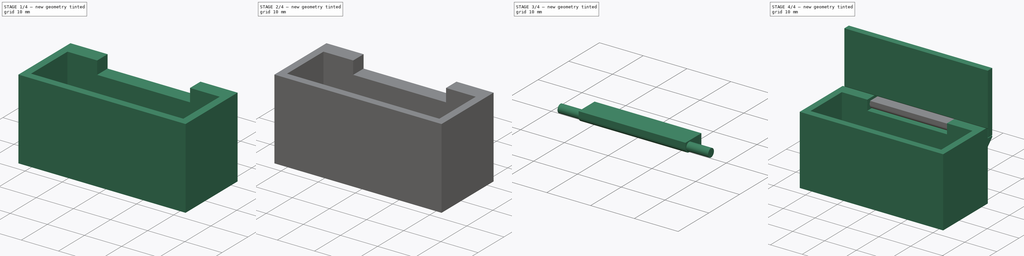
[diagram: build sequence overview — one tinted view per stage of 4, left to right]
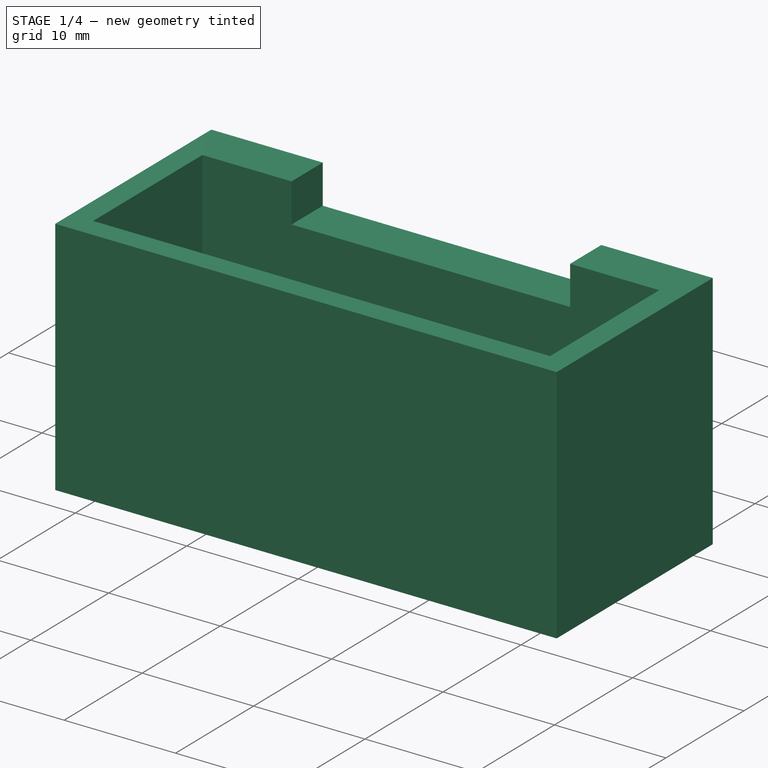
[diagram: stage 1 of 4 — iso view after this stage's code; geometry added in this stage tinted green]
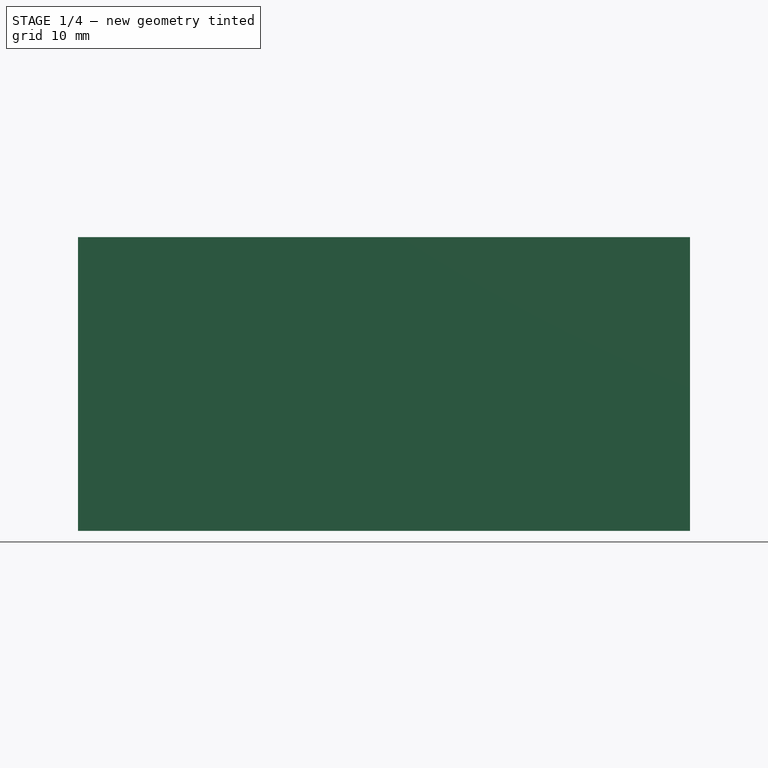
[diagram: stage 1 of 4 — front view after this stage's code; geometry added in this stage tinted green]
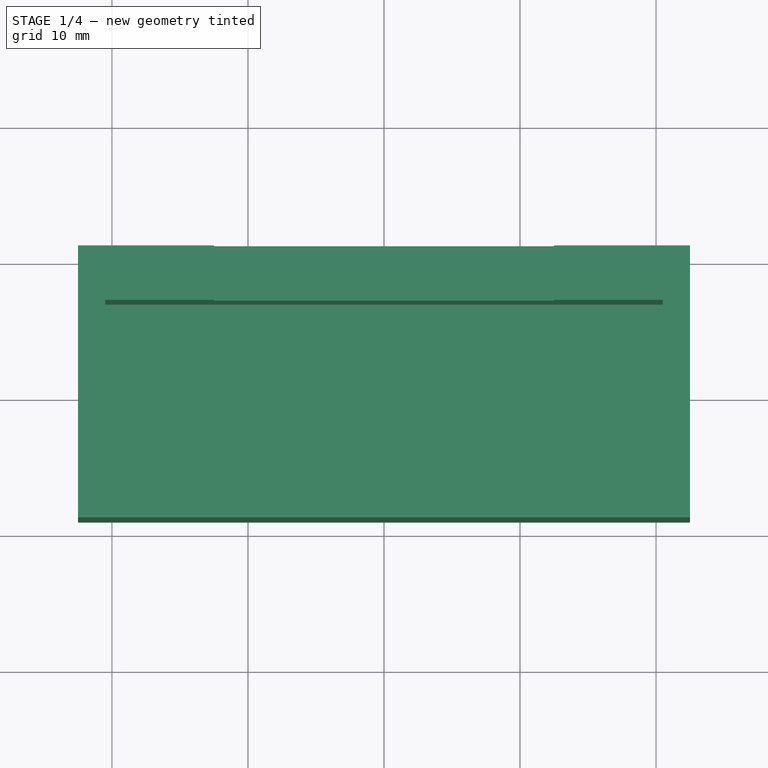
[diagram: stage 1 of 4 — top view after this stage's code; geometry added in this stage tinted green]
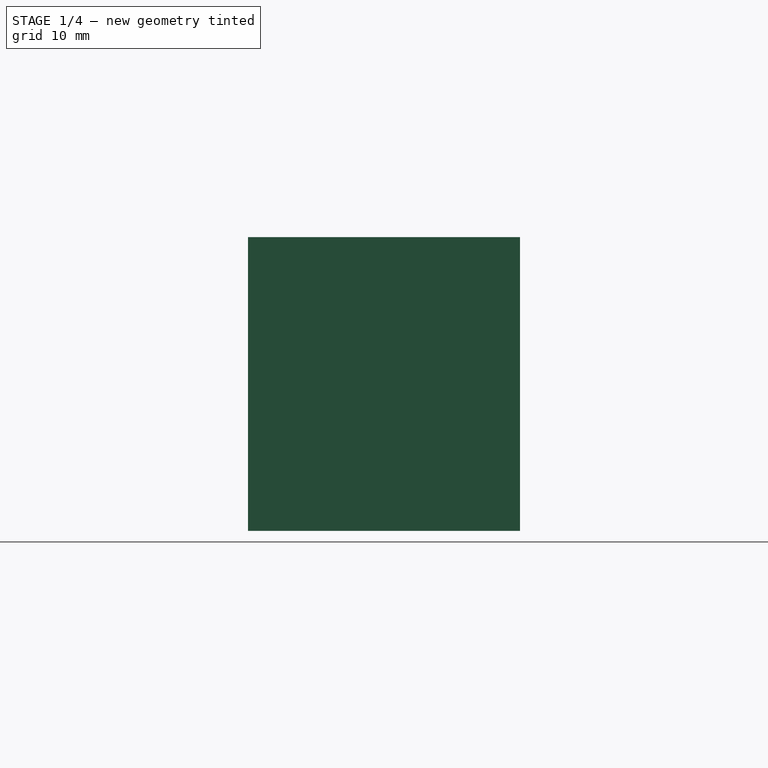
[diagram: stage 1 of 4 — right view after this stage's code; geometry added in this stage tinted green]
FCSTD DOCUMENT  (FreeCAD 1.1R41446 (Git))
Label: КАбка
License: All rights reserved
LicenseURL: https://en.wikipedia.org/wiki/All_rights_reserved
objects: Sketcher::SketchObject×8, PartDesign::Pad×6, PartDesign::SubShapeBinder×5, App::Point×3, PartDesign::Body×3, PartDesign::Pocket×2, PartDesign::Mirrored×1, Part::DatumPlane×1, PartDesign::Revolution×1, PartDesign::Fillet×1, Part::MultiFuse×1
note: 57 computed .brp shape members not serialized (recipe doc carries the construction recipe); baked Part::Feature solids carry a one-line shape summary decoded from their .brp

FEATURE [App::Point] Origin001  label="Начало координат"
  Role = Origin
FEATURE [Sketcher::SketchObject] Sketch
  ArcFitTolerance = 1e-06
  AttachmentSupport = -> [Origin]
  ExternalTypes = [0]
  FullyConstrained = true
  MakeInternals = false
  MapMode = 5
  sketch-geometry (13):
    g0: LineSegment StartX=-20.5 StartY=-7 StartZ=0 EndX=20.5 EndY=-7 EndZ=0
    g1: LineSegment StartX=20.5 StartY=-7 StartZ=0 EndX=20.5 EndY=7 EndZ=0
    g2: LineSegment StartX=20.5 StartY=7 StartZ=0 EndX=-20.5 EndY=7 EndZ=0
    g3: LineSegment StartX=-20.5 StartY=7 StartZ=0 EndX=-20.5 EndY=-7 EndZ=0
    g4: GeomPoint [constr] X=0 Y=0 Z=0
    g5: LineSegment StartX=-22.5 StartY=11 StartZ=0 EndX=-22.5 EndY=-9 EndZ=0
    g6: LineSegment StartX=-22.5 StartY=-9 StartZ=0 EndX=22.5 EndY=-9 EndZ=0
    g7: LineSegment StartX=22.5 StartY=-9 StartZ=0 EndX=22.5 EndY=11 EndZ=0
    g8: LineSegment StartX=22.5 StartY=11 StartZ=0 EndX=-22.5 EndY=11 EndZ=0
    g9: LineSegment [constr] StartX=-22.5 StartY=-7 StartZ=0 EndX=-20.5 EndY=-7 EndZ=0
    g10: LineSegment [constr] StartX=-20.5 StartY=-7 StartZ=0 EndX=-20.5 EndY=-9 EndZ=0
    g11: LineSegment [constr] StartX=20.5 StartY=-9 StartZ=0 EndX=20.5 EndY=-7 EndZ=0
    g12: LineSegment [constr] StartX=20.5 StartY=-7 StartZ=0 EndX=22.5 EndY=-7 EndZ=0
  constraints (36):
    c: Coincident(g0,g1)
    c: Coincident(g1,g2)
    c: Coincident(g2,g3)
    c: Coincident(g3,g0)
    c: Horizontal(g0)
    c: Horizontal(g2)
    c: Vertical(g1)
    c: Vertical(g3)
    c: Symmetric(g2,g0,g4)
    c: Coincident(g4,g-1)
    c: Coincident(g5,g6)
    c: Coincident(g6,g7)
    c: Coincident(g7,g8)
    c: Coincident(g8,g5)
    c: Vertical(g5)
    c: Vertical(g7)
    c: Horizontal(g6)
    c: Horizontal(g8)
    c: PointOnObject(g9,g5)
    c: Coincident(g9,g0)
    c: Coincident(g9,g10)
    c: PointOnObject(g10,g6)
    c: Vertical(g10)
    c: PointOnObject(g11,g6)
    c: Coincident(g11,g0)
    c: Vertical(g11)
    c: Coincident(g11,g12)
    c: PointOnObject(g12,g7)
    c: Horizontal(g12)
    c: Equal(g12,g11)
    c: Equal(g12,g9)
    c: Horizontal(g9)
    c: DistanceY(g2,g5) = 4
    c: DistanceX(g9,g9) = 2
    c: DistanceX(g6,g6) = 45
    c: DistanceY(g5,g5) = 20  'l1'
FEATURE [PartDesign::Pad] Pad
  Direction = (0,0,1)
  Length = 20
  Length2 = 10
  Profile = -> Sketch
  ReferenceAxis = -> Sketch [N_Axis]
  Refine = true
  Suppressed = false
  Type = 0
FEATURE [PartDesign::SubShapeBinder] Binder
  BindCopyOnChange = 0
  BindMode = 0
  ClaimChildren = false
  Context = -> Body [Binder.]
  Fuse = false
  MakeFace = true
  OffsetFill = false
  OffsetIntersection = false
  OffsetJoinType = 0
  OffsetOpenResult = false
  PartialLoad = false
  Refine = true
  Relative = true
  Support = -> [Pad[Edge3,Edge11,Edge6,Edge9]]
  _Version = 2
FEATURE [PartDesign::Pad] Pad001
  BaseFeature = -> Pad
  Direction = (0,0,1)
  Length = 1.6
  Length2 = 10
  Profile = -> Binder
  Refine = true
  Reversed = true
  Suppressed = false
  Type = 0
FEATURE [Sketcher::SketchObject] Sketch001
  ArcFitTolerance = 1e-06
  AttachmentSupport = -> [Pad001]
  ExternalGeometry = -> [Pad001]
  ExternalTypes = [0]
  FullyConstrained = true
  MakeInternals = false
  MapMode = 5
  Placement = pos=(0,11,0) rot=(0,0.707107,0.707107;3.14159rad)
  sketch-geometry (6):
    g0: LineSegment [constr] StartX=-22.5 StartY=20 StartZ=0 EndX=-12.5 EndY=20 EndZ=0
    g1: LineSegment [constr] StartX=22.5 StartY=20 StartZ=0 EndX=12.5 EndY=20 EndZ=0
    g2: LineSegment StartX=-12.5 StartY=20 StartZ=0 EndX=12.5 EndY=20 EndZ=0
    g3: LineSegment StartX=12.5 StartY=20 StartZ=0 EndX=12.5 EndY=16.5 EndZ=0
    g4: LineSegment StartX=12.5 StartY=16.5 StartZ=0 EndX=-12.5 EndY=16.5 EndZ=0
    g5: LineSegment StartX=-12.5 StartY=16.5 StartZ=0 EndX=-12.5 EndY=20 EndZ=0
  constraints (16):
    c: Coincident(g-3,g0)
    c: Coincident(g-3,g1)
    c: Equal(g0,g1)
    c: DistanceX(g1,g1) = 10
    c: PointOnObject(g1,g-3)
    c: PointOnObject(g0,g-3)
    c: Coincident(g0,g2)
    c: Coincident(g2,g1)
    c: Coincident(g2,g3)
    c: Vertical(g3)
    c: Coincident(g3,g4)
    c: Horizontal(g4)
    c: Coincident(g4,g5)
    c: Coincident(g5,g2)
    c: Vertical(g5)
    c: DistanceY(g5,g5) = 3.5
FEATURE [PartDesign::Pocket] Pocket
  BaseFeature = -> Pad001
  Direction = (0,-1,2e-16)
  Length = 0
  Length2 = 5
  Profile = -> Sketch001
  ReferenceAxis = -> Sketch001 [N_Axis]
  Refine = true
  Suppressed = false
  Type = 3
  UpToFace = -> Pad001 [Face6]
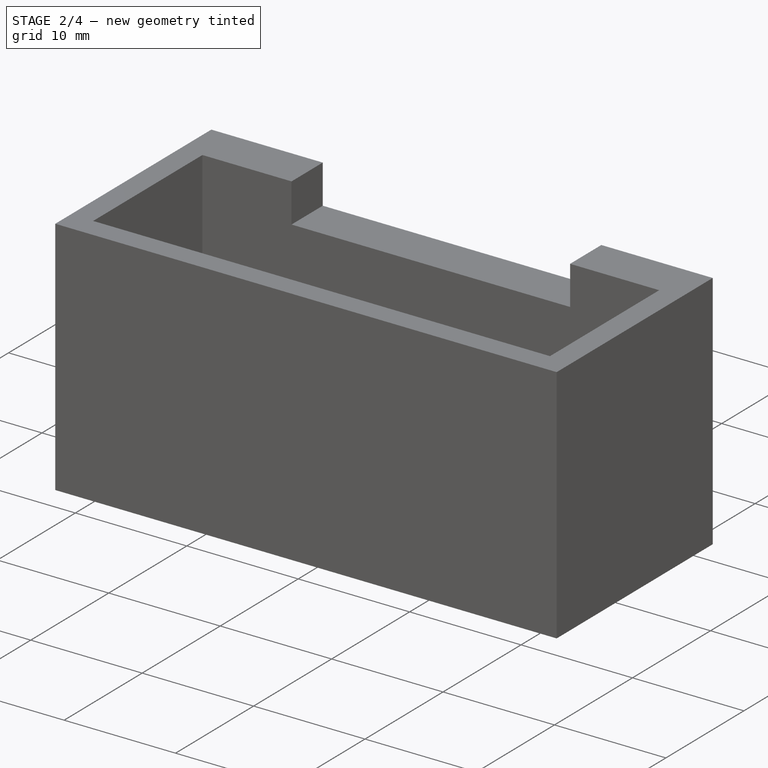
[diagram: stage 2 of 4 — iso view after this stage's code; geometry added in this stage tinted green]
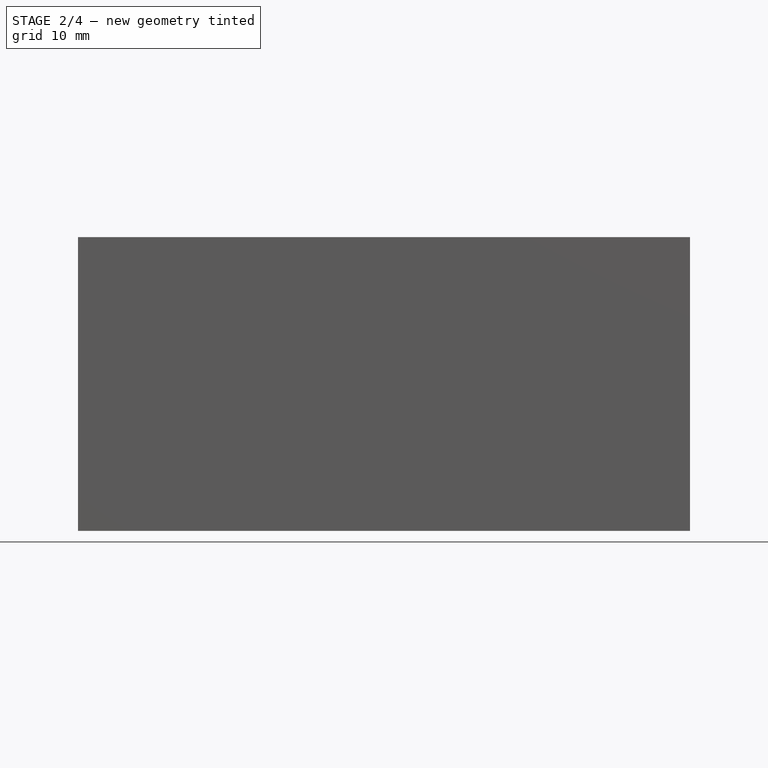
[diagram: stage 2 of 4 — front view after this stage's code; geometry added in this stage tinted green]
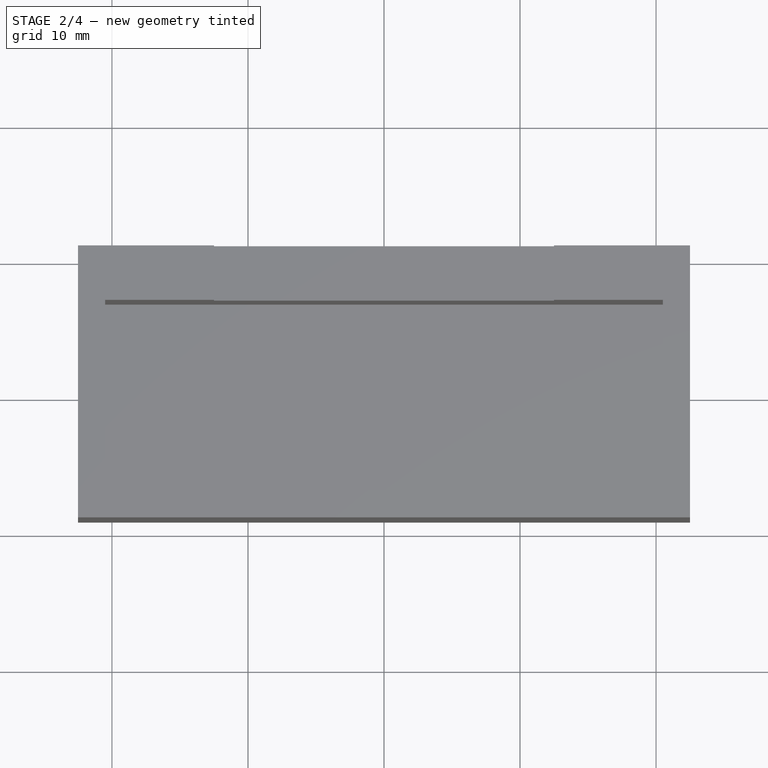
[diagram: stage 2 of 4 — top view after this stage's code; geometry added in this stage tinted green]
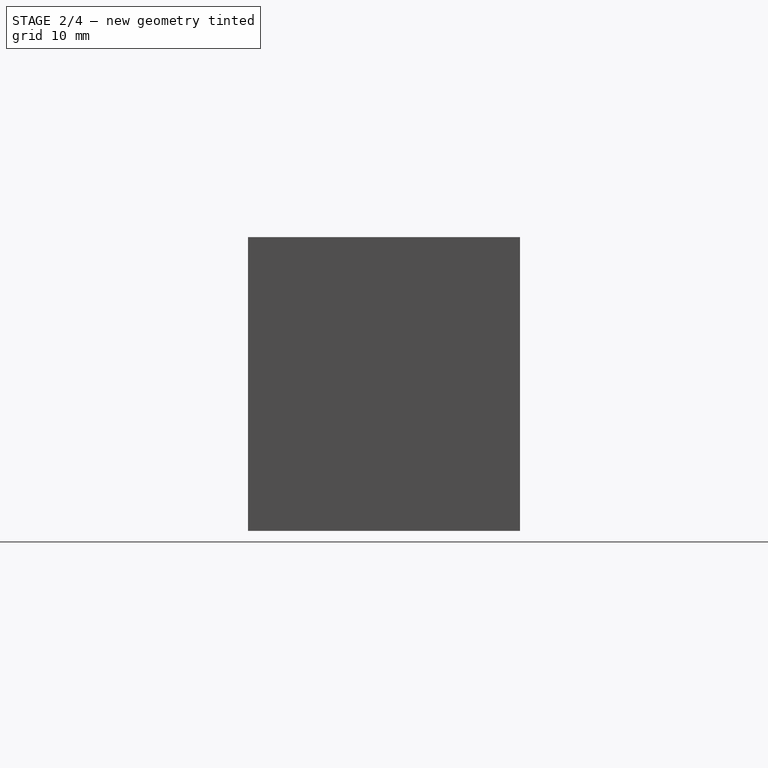
[diagram: stage 2 of 4 — right view after this stage's code; geometry added in this stage tinted green]
FEATURE [Sketcher::SketchObject] Sketch002
  ArcFitTolerance = 1e-06
  ExternalTypes = [0,0]
  FullyConstrained = true
  MakeInternals = false
  MapMode = 5
  Placement = pos=(12.5,0,0) rot=(0.57735,-0.57735,-0.57735;2.0944rad)
  sketch-geometry (2):
    g0: GeomPoint X=-9 Y=18.25 Z=0
    g1: Circle CenterX=-9 CenterY=18.25 CenterZ=0 NormalX=0 NormalY=0 NormalZ=1 AngleXU=0 Radius=1.25
  constraints (3):
    c: Symmetric(g-3,g-4,g0)
    c: Coincident(g1,g0)
    c: Diameter(g1) = 2.5
FEATURE [PartDesign::Pocket] Pocket001
  BaseFeature = -> Pocket
  Direction = (1,0,0)
  Length = 5
  Length2 = 5
  Profile = -> Sketch002
  ReferenceAxis = -> Sketch002 [N_Axis]
  Refine = true
  Suppressed = false
  Type = 0
FEATURE [PartDesign::Mirrored] Mirrored
  BaseFeature = -> Pocket001
  MirrorPlane = -> YZ_Plane
  Originals = -> [Pocket001]
  Refine = true
  Suppressed = false
  TransformMode = 0
FEATURE [PartDesign::Body] Body002  label="Тело002"
  AllowCompound = false
  Group = -> [Binder004,Sketch008,Pad005]
  Origin = -> Origin004
  Tip = -> Pad005
FEATURE [PartDesign::Fillet] Fillet
  Base = -> Pocket [Edge10,Edge6]
  BaseFeature = -> Pocket
  Radius = 1
  Refine = true
  SupportTransform = false
  Suppressed = false
  UseAllEdges = false
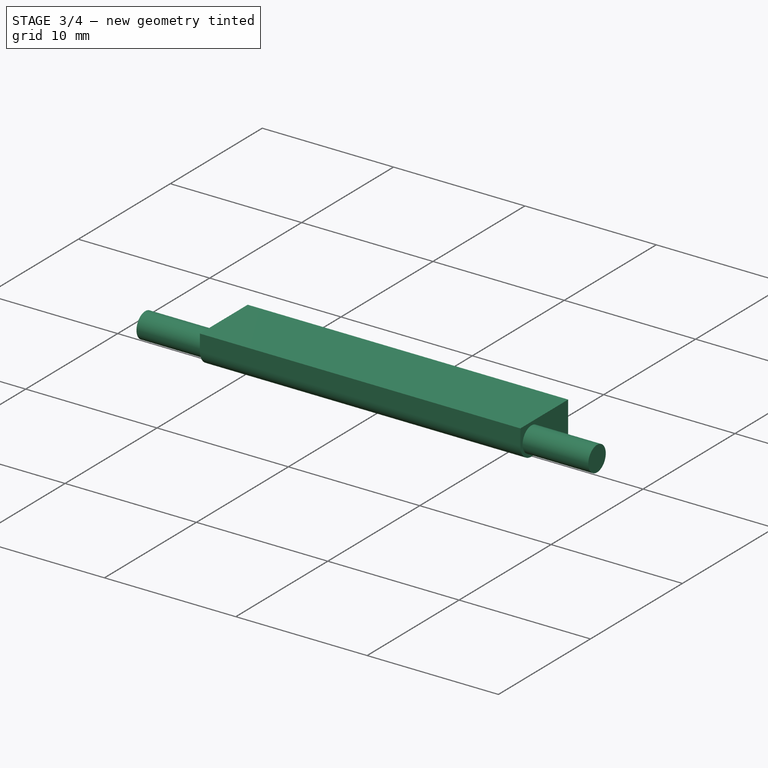
[diagram: stage 3 of 4 — iso view after this stage's code; geometry added in this stage tinted green]
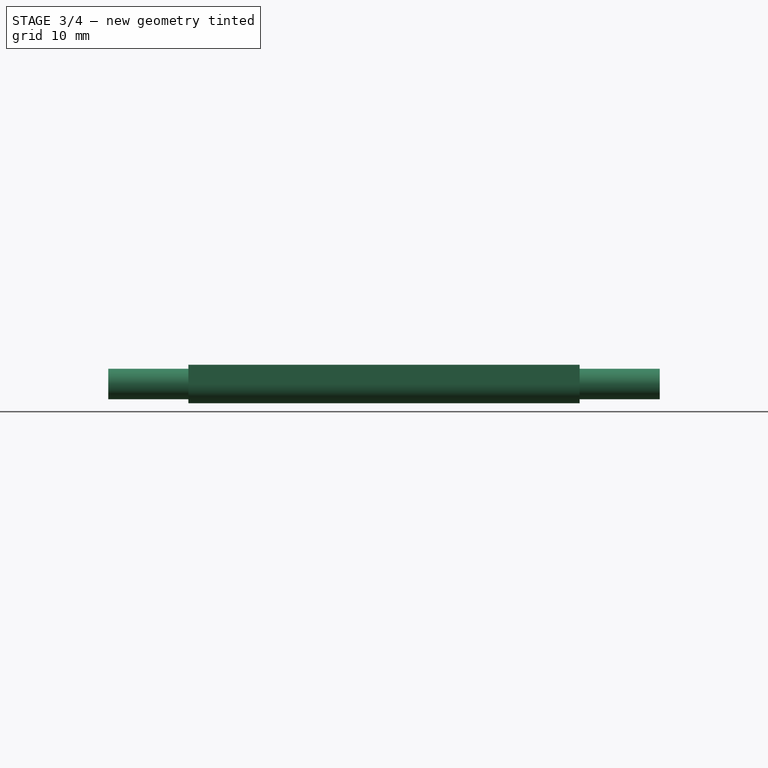
[diagram: stage 3 of 4 — front view after this stage's code; geometry added in this stage tinted green]
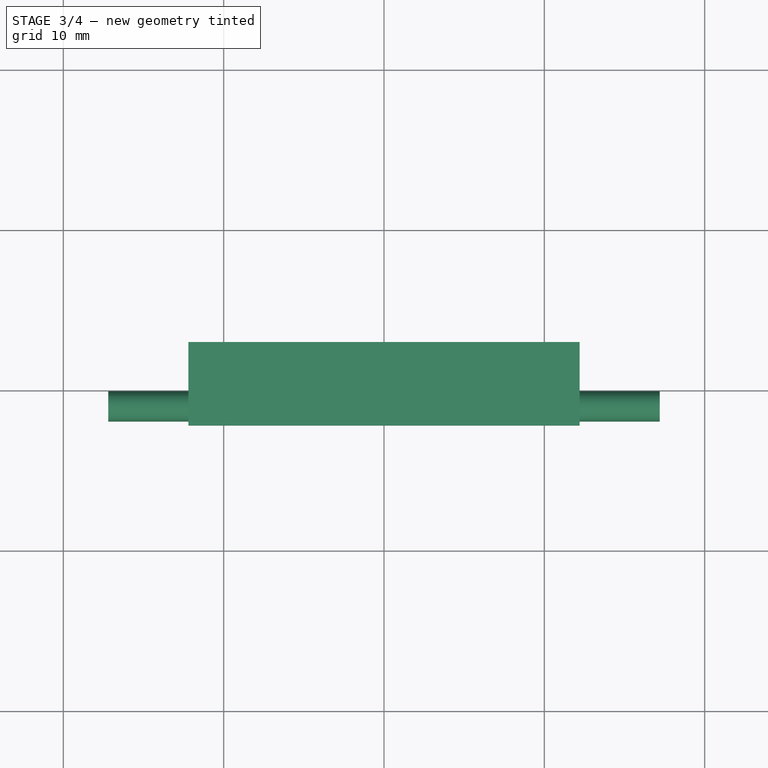
[diagram: stage 3 of 4 — top view after this stage's code; geometry added in this stage tinted green]
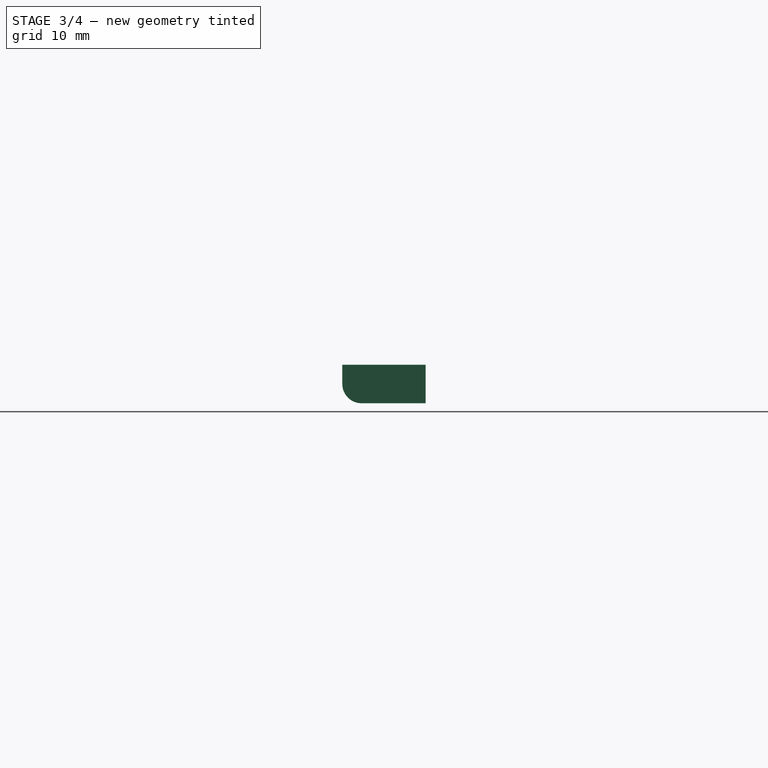
[diagram: stage 3 of 4 — right view after this stage's code; geometry added in this stage tinted green]
FEATURE [App::Point] Origin003  label="Начало координат002"
  Role = Origin
FEATURE [PartDesign::SubShapeBinder] Binder001
  BindCopyOnChange = 0
  BindMode = 0
  ClaimChildren = false
  Context = -> Body001 [Binder001.]
  Fuse = false
  MakeFace = true
  OffsetFill = false
  OffsetIntersection = false
  OffsetJoinType = 0
  OffsetOpenResult = false
  PartialLoad = false
  Refine = true
  Relative = true
  Support = -> [Body[Mirrored.]]
  _Version = 2
FEATURE [Part::DatumPlane] DatumPlane
  AttachmentOffset = pos=(0,0,1.25) rot=(0,0,1;0rad)
  AttachmentSupport = -> [Binder001]
  MapMode = 6
  Placement = pos=(-12.5,9,18.25) rot=(0.57735,-0.57735,-0.57735;4.18879rad)
FEATURE [Sketcher::SketchObject] Sketch003
  ArcFitTolerance = 1e-06
  AttachmentSupport = -> [DatumPlane]
  ExternalGeometry = -> [Binder001]
  ExternalTypes = [0,0,0,0,0]
  FullyConstrained = false
  MakeInternals = false
  MapMode = 5
  Placement = pos=(-12.5,9,18.25) rot=(0.57735,-0.57735,-0.57735;4.18879rad)
  sketch-geometry (19):
    g0: LineSegment [constr] StartX=-0.95 StartY=4.7 StartZ=0 EndX=-0.95 EndY=-0.3 EndZ=0
    g1: LineSegment [constr] StartX=-0.95 StartY=-0.3 StartZ=0 EndX=-1.2 EndY=-0.3 EndZ=0
    g2: LineSegment [constr] StartX=-1.2 StartY=-0.3 StartZ=0 EndX=-1.2 EndY=-24.7 EndZ=0
    g3: LineSegment [constr] StartX=-1.2 StartY=-24.7 StartZ=0 EndX=-0.95 EndY=-24.7 EndZ=0
    g4: LineSegment [constr] StartX=-0.95 StartY=-24.7 StartZ=0 EndX=-0.95 EndY=-29.7 EndZ=0
    g5: LineSegment StartX=0.95 StartY=-29.7 StartZ=0 EndX=0.95 EndY=-24.7 EndZ=0
    g6: LineSegment StartX=0.95 StartY=-24.7 StartZ=0 EndX=1.2 EndY=-24.7 EndZ=0
    g7: LineSegment StartX=1.2 StartY=-24.7 StartZ=0 EndX=1.2 EndY=-0.3 EndZ=0
    g8: LineSegment StartX=1.2 StartY=-0.3 StartZ=0 EndX=0.95 EndY=-0.3 EndZ=0
    g9: LineSegment StartX=0.95 StartY=-0.3 StartZ=0 EndX=0.95 EndY=4.7 EndZ=0
    g10: LineSegment [constr] StartX=1.2 StartY=-0.3 StartZ=0 EndX=1.2 EndY=1.8e-15 EndZ=0
    g11: LineSegment [constr] StartX=1.2 StartY=-25 StartZ=0 EndX=1.2 EndY=-24.7 EndZ=0
    g12: GeomPoint [constr] X=0 Y=4.7 Z=0
    g13: LineSegment [constr] StartX=-0.95 StartY=4.7 StartZ=0 EndX=0 EndY=4.7 EndZ=0
    g14: LineSegment StartX=0 StartY=4.7 StartZ=0 EndX=0.95 EndY=4.7 EndZ=0
    g15: LineSegment [constr] StartX=-0.95 StartY=-29.7 StartZ=0 EndX=0 EndY=-29.7 EndZ=0
    g16: LineSegment StartX=0 StartY=-29.7 StartZ=0 EndX=0.95 EndY=-29.7 EndZ=0
    g17: LineSegment StartX=0 StartY=-29.7 StartZ=0 EndX=0 EndY=4.7 EndZ=0
    g18: LineSegment [constr] StartX=-8.8544 StartY=-12.5 StartZ=0 EndX=13.6841 EndY=-12.5 EndZ=0
  constraints (50):
    c: Vertical(g0)
    c: Coincident(g0,g1)
    c: Coincident(g1,g2)
    c: Vertical(g2)
    c: Coincident(g2,g3)
    c: Coincident(g3,g4)
    c: Vertical(g4)
    c: Coincident(g4,g15)
    c: Coincident(g16,g5)
    c: Coincident(g5,g6)
    c: Horizontal(g6)
    c: Coincident(g6,g7)
    c: Vertical(g7)
    c: Coincident(g7,g8)
    c: Coincident(g8,g9)
    c: Vertical(g9)
    c: Horizontal(g1)
    c: Horizontal(g8)
    c: Horizontal(g3)
    c: Vertical(g5)
    c: Horizontal(g5,g3)
    c: DistanceY(g7,g-5) = 0.3
    c: Coincident(g10,g7)
    c: PointOnObject(g10,g-5)
    c: Vertical(g10)
    c: PointOnObject(g11,g-6)
    c: Coincident(g11,g6)
    c: Vertical(g11)
    c: Equal(g11,g10)
    c: DistanceX(g7,g-3) = 0.55
    c: DistanceX(g8,g-5) = 0.3
    c: Coincident(g0,g13)
    c: Coincident(g13,g12)
    c: Horizontal(g13)
    c: Coincident(g13,g14)
    c: Horizontal(g14)
    c: Coincident(g14,g9)
    c: PointOnObject(g12,g-2)
    c: Equal(g14,g13)
    c: Coincident(g15,g16)
    c: Horizontal(g15)
    c: Horizontal(g16)
    c: Equal(g15,g16)
    c: Coincident(g17,g15)
    c: Coincident(g17,g12)
    c: DistanceY(g9,g-4) = 0.3
    c: Symmetric(g15,g12,g18)
    c: Symmetric(g2,g1,g18)
    c: Symmetric(g7,g1,g17)
    c: Equal(g6,g8)
FEATURE [PartDesign::Revolution] Revolution
  Angle = 360
  Angle2 = 60
  Axis = (-1,0,0)
  Base = (17.2,9,18.25)
  Placement = pos=(-12.5,9,18.25) rot=(0.57735,-0.57735,-0.57735;4.18879rad)
  Profile = -> Sketch003
  ReferenceAxis = -> Sketch003 [Edge7]
  Refine = true
  Reversed = true
  Suppressed = false
  Type = 0
FEATURE [Sketcher::SketchObject] Sketch004
  ArcFitTolerance = 1e-06
  AttachmentSupport = -> [Revolution]
  ExternalGeometry = -> [Revolution]
  ExternalTypes = [0]
  FullyConstrained = true
  MakeInternals = false
  MapMode = 5
  Placement = pos=(12.2,9,18.25) rot=(0,1,0;1.5708rad)
  sketch-geometry (6):
    g0: ArcOfCircle CenterX=0 CenterY=0 CenterZ=0 NormalX=0 NormalY=0 NormalZ=1 AngleXU=0 Radius=1.2 StartAngle=3.14159 EndAngle=4.71239
    g1: ArcOfCircle CenterX=0 CenterY=0 CenterZ=0 NormalX=0 NormalY=0 NormalZ=1 AngleXU=0 Radius=1.2 StartAngle=0 EndAngle=1.5708
    g2: LineSegment StartX=1e-16 StartY=1.2 StartZ=0 EndX=1.2 EndY=1.2 EndZ=0
    g3: LineSegment StartX=1.2 StartY=1.2 StartZ=0 EndX=1.2 EndY=0 EndZ=0
    g4: LineSegment StartX=-2e-16 StartY=-1.2 StartZ=0 EndX=-1.2 EndY=-1.2 EndZ=0
    g5: LineSegment StartX=-1.2 StartY=-1.2 StartZ=0 EndX=-1.2 EndY=2e-16 EndZ=0
  constraints (18):
    c: Coincident(g0,g-1)
    c: Coincident(g1,g0)
    c: Coincident(g2,g3)
    c: Coincident(g3,g1)
    c: Vertical(g3)
    c: Coincident(g0,g4)
    c: Coincident(g4,g5)
    c: Coincident(g5,g0)
    c: Coincident(g2,g1)
    c: PointOnObject(g0,g-2)
    c: PointOnObject(g0,g-1)
    c: PointOnObject(g1,g-2)
    c: PointOnObject(g1,g-1)
    c: Equal(g3,g2)
    c: Equal(g4,g5)
    c: PointOnObject(g0,g-3)
    c: PointOnObject(g1,g-3)
    c: Vertical(g5)
FEATURE [PartDesign::Pad] Pad002
  BaseFeature = -> Revolution
  Direction = (1,0,2e-16)
  Length = 10
  Length2 = 10
  Placement = pos=(-12.5,9,18.25) rot=(0.57735,-0.57735,-0.57735;4.18879rad)
  Profile = -> Sketch004
  ReferenceAxis = -> Sketch004 [N_Axis]
  Refine = true
  Suppressed = false
  Type = 3
  UpToFace = -> Revolution [Face4]
FEATURE [Sketcher::SketchObject] Sketch005
  ArcFitTolerance = 1e-06
  AttachmentSupport = -> [Pad002]
  ExternalGeometry = -> [Pad002]
  ExternalTypes = [0,0,0]
  FullyConstrained = true
  MakeInternals = false
  MapMode = 5
  Placement = pos=(12.2,9,18.25) rot=(0,1,0;1.5708rad)
  sketch-geometry (3):
    g0: LineSegment StartX=-1.2 StartY=0 StartZ=0 EndX=-1.2 EndY=4 EndZ=0
    g1: LineSegment StartX=-1.2 StartY=4 StartZ=0 EndX=1.2 EndY=4 EndZ=0
    g2: LineSegment StartX=1.2 StartY=4 StartZ=0 EndX=1.2 EndY=1.2 EndZ=0
  constraints (8):
    c: Coincident(g-4,g0)
    c: Coincident(g0,g1)
    c: Horizontal(g1)
    c: Coincident(g1,g2)
    c: Coincident(g2,g-3)
    c: Vertical(g2)
    c: DistanceY(g-5,g1) = 2
    c: Vertical(g0)
FEATURE [PartDesign::SubShapeBinder] Binder002
  BindCopyOnChange = 0
  BindMode = 0
  ClaimChildren = false
  Context = -> Body001 [Binder002.]
  Fuse = false
  MakeFace = true
  OffsetFill = false
  OffsetIntersection = false
  OffsetJoinType = 0
  OffsetOpenResult = false
  PartialLoad = false
  Refine = true
  Relative = true
  Support = -> [Body[Mirrored.]]
  _Version = 2
FEATURE [PartDesign::Pad] Pad003
  BaseFeature = -> Pad002
  Direction = (1,0,2e-16)
  Length = 10
  Length2 = 10
  Placement = pos=(-12.5,9,18.25) rot=(0.57735,-0.57735,-0.57735;4.18879rad)
  Profile = -> Sketch005
  ReferenceAxis = -> Sketch005 [N_Axis]
  Refine = true
  Suppressed = false
  Type = 3
  UpToFace = -> Pad002 [Face10]
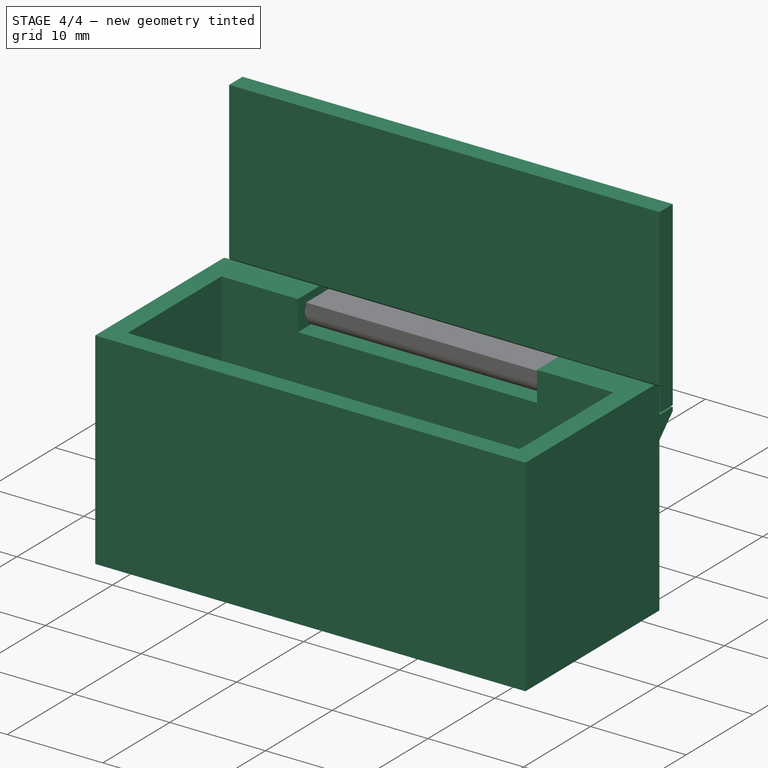
[diagram: stage 4 of 4 — iso view after this stage's code; geometry added in this stage tinted green]
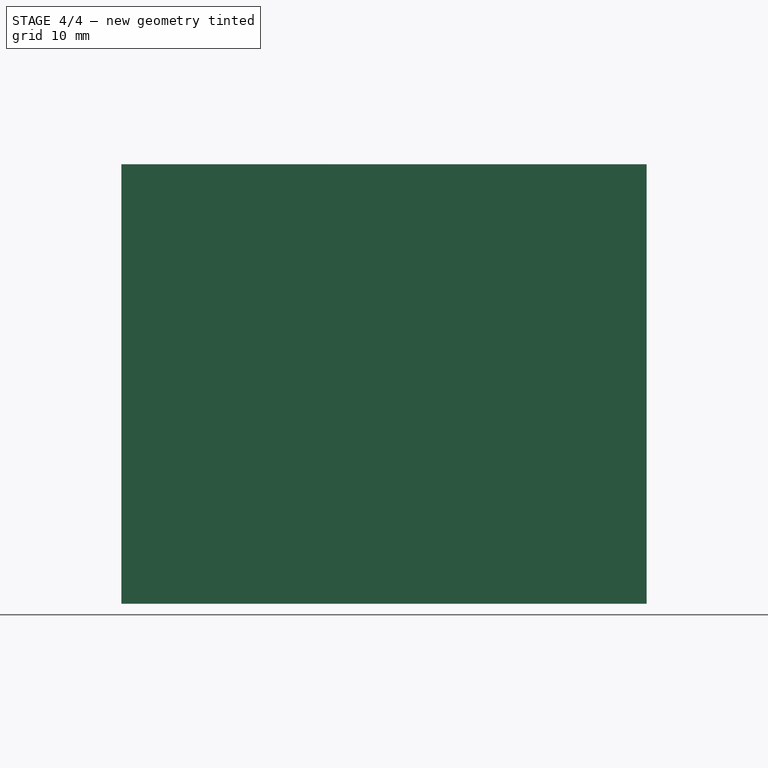
[diagram: stage 4 of 4 — front view after this stage's code; geometry added in this stage tinted green]
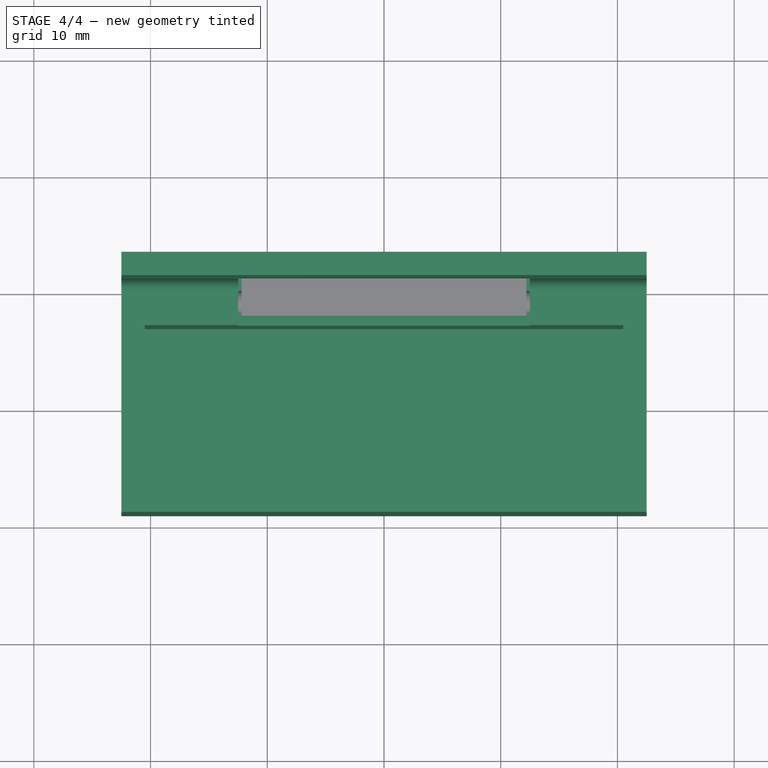
[diagram: stage 4 of 4 — top view after this stage's code; geometry added in this stage tinted green]
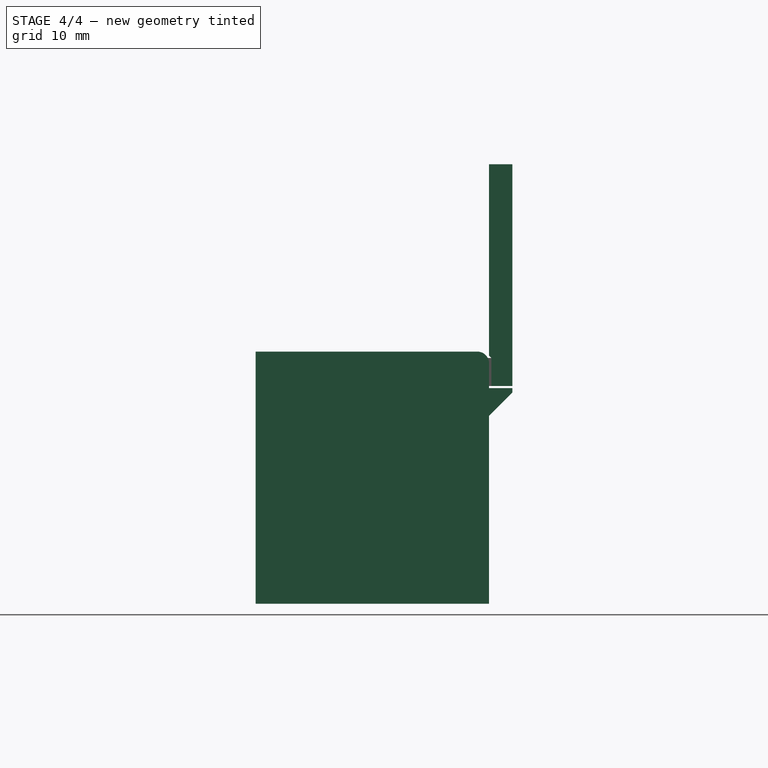
[diagram: stage 4 of 4 — right view after this stage's code; geometry added in this stage tinted green]
FEATURE [Sketcher::SketchObject] Sketch007
  ArcFitTolerance = 1e-06
  AttachmentSupport = -> [Mirrored]
  ExternalGeometry = -> [Pad003]
  ExternalTypes = [0,0,0]
  FullyConstrained = true
  MakeInternals = false
  MapMode = 5
  Placement = pos=(22.5,0,0) rot=(0.57735,0.57735,0.57735;2.0944rad)
  sketch-geometry (6):
    g0: LineSegment StartX=11.2 StartY=17.05 StartZ=0 EndX=11.2 EndY=19.45 EndZ=0
    g1: LineSegment StartX=11.2 StartY=19.45 StartZ=0 EndX=11 EndY=19.65 EndZ=0
    g2: LineSegment StartX=11 StartY=19.65 StartZ=0 EndX=11 EndY=36.05 EndZ=0
    g3: LineSegment StartX=11 StartY=36.05 StartZ=0 EndX=13 EndY=36.05 EndZ=0
    g4: LineSegment StartX=13 StartY=36.05 StartZ=0 EndX=13 EndY=17.05 EndZ=0
    g5: LineSegment StartX=13 StartY=17.05 StartZ=0 EndX=11.2 EndY=17.05 EndZ=0
  constraints (17):
    c: PointOnObject(g0,g-4)
    c: PointOnObject(g0,g-3)
    c: Vertical(g0)
    c: DistanceX(g0,g-3) = 1.8
    c: Coincident(g1,g0)
    c: DistanceX(g1,g-3) = 2
    c: Angle(g1,g0) = 2.35619
    c: Coincident(g1,g2)
    c: Vertical(g2)
    c: Coincident(g2,g3)
    c: Horizontal(g3)
    c: Coincident(g3,g4)
    c: Coincident(g4,g-4)
    c: Vertical(g4)
    c: Coincident(g4,g5)
    c: Coincident(g5,g0)
    c: DistanceY(g4,g4) = 19
FEATURE [PartDesign::SubShapeBinder] Binder003
  BindCopyOnChange = 0
  BindMode = 0
  ClaimChildren = false
  Context = -> Body001 [Binder003.]
  Fuse = false
  MakeFace = true
  OffsetFill = false
  OffsetIntersection = false
  OffsetJoinType = 0
  OffsetOpenResult = false
  PartialLoad = false
  Refine = true
  Relative = true
  Support = -> [Body[Mirrored.]]
  _Version = 2
FEATURE [PartDesign::Pad] Pad004
  BaseFeature = -> Pad003
  Direction = (1,0,0)
  Length = 45
  Length2 = 10
  Placement = pos=(-12.5,9,18.25) rot=(0.57735,-0.57735,-0.57735;4.18879rad)
  Profile = -> Sketch007
  ReferenceAxis = -> Sketch007 [N_Axis]
  Refine = true
  Reversed = true
  Suppressed = false
  Type = 0
FEATURE [PartDesign::Body] Body001  label="Тело001"
  AllowCompound = false
  Group = -> [Binder003,Binder002,Binder001,DatumPlane,Sketch003,Revolution,Sketch004,Pad002,Sketch005,Pad003,Sketch007,Pad004]
  Origin = -> Origin002
  Tip = -> Pad004
FEATURE [App::Point] Origin005  label="Начало координат004"
  Role = Origin
FEATURE [PartDesign::SubShapeBinder] Binder004
  BindCopyOnChange = 0
  BindMode = 0
  ClaimChildren = false
  Context = -> Body002 [Binder004.]
  Fuse = false
  MakeFace = true
  OffsetFill = false
  OffsetIntersection = false
  OffsetJoinType = 0
  OffsetOpenResult = false
  PartialLoad = false
  Refine = true
  Relative = true
  Support = -> [Body,Body001[Pad004.]]
  _Version = 2
FEATURE [Sketcher::SketchObject] Sketch008
  ArcFitTolerance = 1e-06
  ExternalGeometry = -> [Binder004]
  ExternalTypes = [0,0,0]
  FullyConstrained = true
  MakeInternals = false
  MapMode = 5
  Placement = pos=(22.5,0,0) rot=(0.57735,0.57735,0.57735;2.0944rad)
  sketch-geometry (5):
    g0: LineSegment StartX=7 StartY=16.5 StartZ=0 EndX=7 EndY=16.87 EndZ=0
    g1: LineSegment StartX=7 StartY=16.87 StartZ=0 EndX=13 EndY=16.87 EndZ=0
    g2: LineSegment StartX=13 StartY=16.87 StartZ=0 EndX=13 EndY=16.5 EndZ=0
    g3: LineSegment StartX=13 StartY=16.5 StartZ=0 EndX=11 EndY=14.5 EndZ=0
    g4: LineSegment StartX=11 StartY=14.5 StartZ=0 EndX=11 EndY=16.5 EndZ=0
  constraints (14):
    c: Coincident(g-3,g0)
    c: Vertical(g0)
    c: Coincident(g0,g1)
    c: Horizontal(g1)
    c: Coincident(g1,g2)
    c: Coincident(g2,g3)
    c: Coincident(g3,g4)
    c: Coincident(g4,g-3)
    c: Vertical(g4)
    c: Angle(g3,g4) = 0.785398
    c: Vertical(g2)
    c: Horizontal(g2,g4)
    c: Vertical(g1,g-5)
    c: DistanceY(g1,g-5) = 0.18
FEATURE [PartDesign::Pad] Pad005
  Direction = (1,0,0)
  Length = 45
  Length2 = 10
  Placement = pos=(22.5,0,0) rot=(0.57735,0.57735,0.57735;2.0944rad)
  Profile = -> Sketch008
  ReferenceAxis = -> Sketch008 [N_Axis]
  Refine = true
  Reversed = true
  Suppressed = false
  Type = 0
FEATURE [PartDesign::Body] Body  label="Тело"
  AllowCompound = false
  Group = -> [Sketch,Pad,Binder,Pad001,Sketch001,Pocket,Sketch002,Pocket001,Mirrored,Fillet]
  Origin = -> Origin
  Tip = -> Fillet
FEATURE [Part::MultiFuse] Fusion
  Refine = true
  Shapes = -> [Body,Body001,Body002]
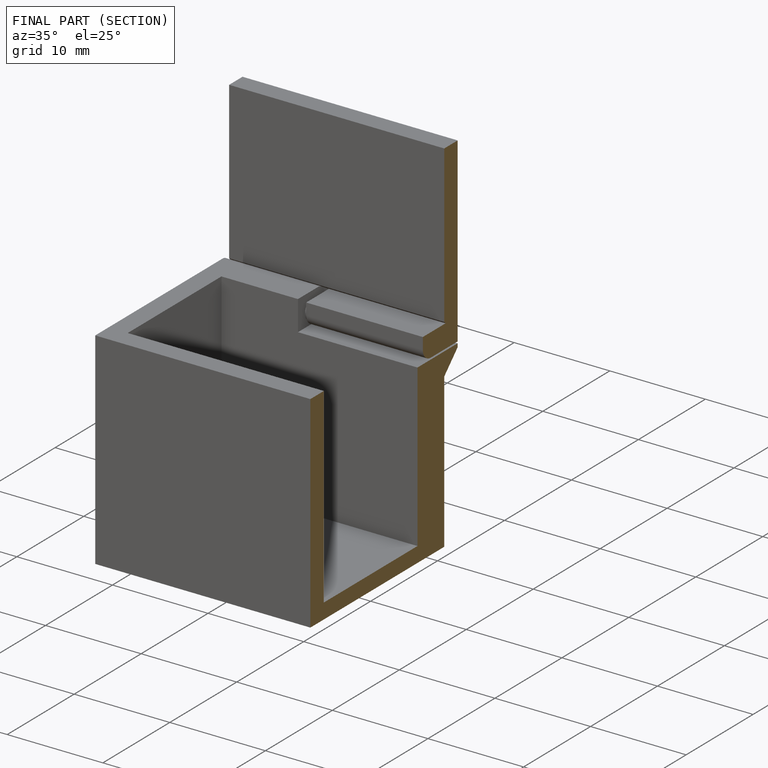
[diagram: finished part — half-section view (interior)]
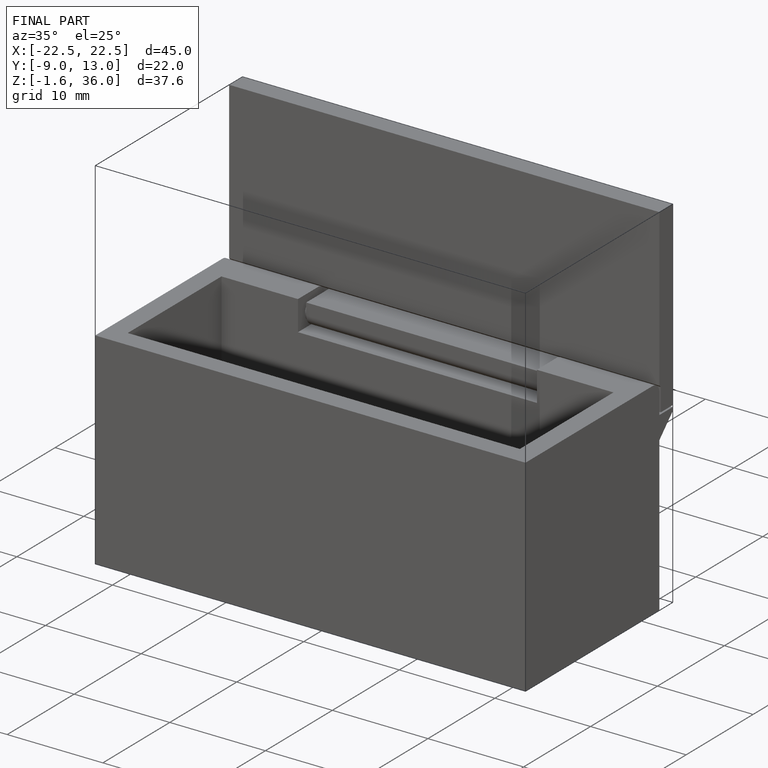
[diagram: finished part — iso view with bounding-box wireframe]
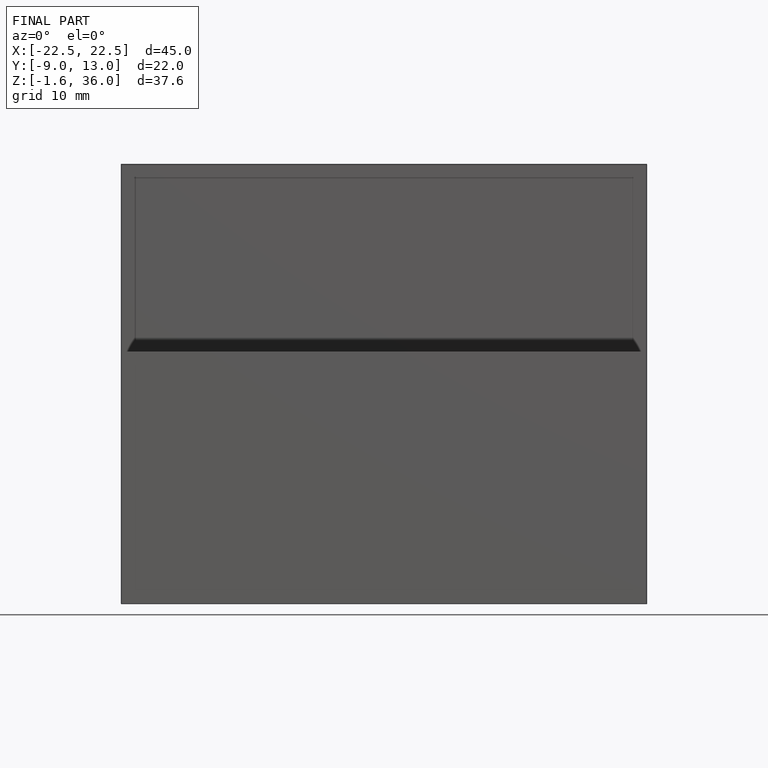
[diagram: finished part — front view with bounding-box wireframe]
